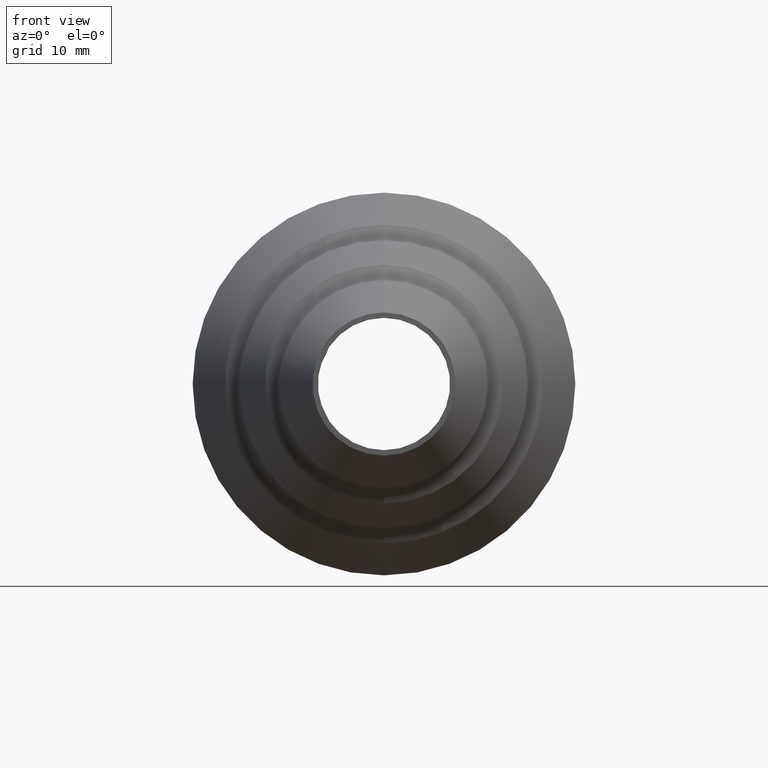
[diagram: clean part render]
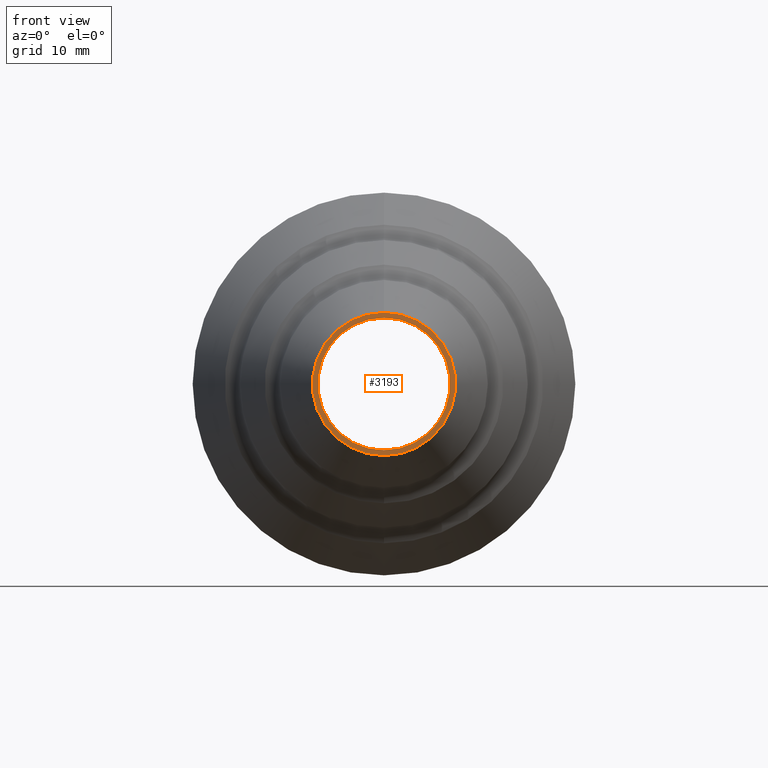
[diagram: same view with one face highlighted and labeled with its STEP entity id]
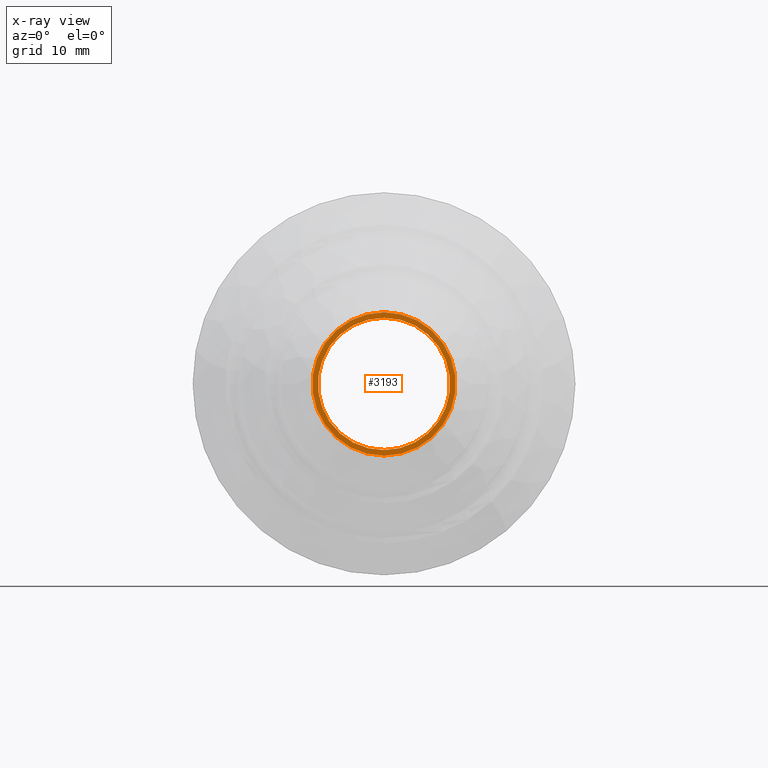
[diagram: x-ray of the same camera — body ghosted, the highlighted face saturated]
A machine part, front view. The second image highlights one B-rep face of the part: STEP entity #3193.
The next image is the same camera in x-ray: the body ghosted, the highlighted face saturated — about 0% of this face is hidden behind the body in this view.
In plain terms, the highlighted planar face has unit normal (0, -1, 0).
Its self-contained STEP definition (entity closure, byte-faithful):
#336 = ORIENTED_EDGE ( 'NONE', *, *, #3563, .F. ) ;
#427 = FACE_OUTER_BOUND ( 'NONE', #6768, .T. ) ;
#629 = VERTEX_POINT ( 'NONE', #2671 ) ;
#715 = ORIENTED_EDGE ( 'NONE', *, *, #10215, .T. ) ;
#851 = VERTEX_POINT ( 'NONE', #11990 ) ;
#932 = AXIS2_PLACEMENT_3D ( 'NONE', #5476, #13220, #8827 ) ;
#1375 = CIRCLE ( 'NONE', #12489, 6.549999999999997158 ) ;
#2671 = CARTESIAN_POINT ( 'NONE',  ( 7.409113134841483563E-16, -22.50000000000000000, 6.049999999999996270 ) ) ;
#2757 = CIRCLE ( 'NONE', #10824, 6.049999999999996270 ) ;
#2948 = AXIS2_PLACEMENT_3D ( 'NONE', #4865, #12622, #4911 ) ;
#3193 = ADVANCED_FACE ( 'NONE', ( #4397, #427 ), #9894, .T. ) ;
#3563 = EDGE_CURVE ( 'NONE', #629, #13613, #11705, .T. ) ;
#3771 = DIRECTION ( 'NONE',  ( 0.000000000000000000, -1.000000000000000000, 0.000000000000000000 ) ) ;
#4397 = FACE_BOUND ( 'NONE', #4459, .T. ) ;
#4459 = EDGE_LOOP ( 'NONE', ( #7550, #336 ) ) ;
#4865 = CARTESIAN_POINT ( 'NONE',  ( 0.000000000000000000, -22.50000000000000000, 0.000000000000000000 ) ) ;
#4892 = DIRECTION ( 'NONE',  ( 0.000000000000000000, 0.000000000000000000, -1.000000000000000000 ) ) ;
#4911 = DIRECTION ( 'NONE',  ( 0.000000000000000000, 0.000000000000000000, -1.000000000000000000 ) ) ;
#5278 = DIRECTION ( 'NONE',  ( 0.000000000000000000, 0.000000000000000000, -1.000000000000000000 ) ) ;
#5476 = CARTESIAN_POINT ( 'NONE',  ( 6.049999999999996270, -22.50000000000000000, 0.000000000000000000 ) ) ;
#6014 = DIRECTION ( 'NONE',  ( 0.000000000000000000, -1.000000000000000000, 0.000000000000000000 ) ) ;
#6458 = DIRECTION ( 'NONE',  ( 0.000000000000000000, -1.000000000000000000, 0.000000000000000000 ) ) ;
#6768 = EDGE_LOOP ( 'NONE', ( #9908, #715 ) ) ;
#7071 = CARTESIAN_POINT ( 'NONE',  ( 0.000000000000000000, -22.50000000000000000, -6.549999999999997158 ) ) ;
#7089 = DIRECTION ( 'NONE',  ( 0.000000000000000000, 0.000000000000000000, -1.000000000000000000 ) ) ;
#7179 = VERTEX_POINT ( 'NONE', #7071 ) ;
#7550 = ORIENTED_EDGE ( 'NONE', *, *, #10027, .F. ) ;
#8827 = DIRECTION ( 'NONE',  ( 0.000000000000000000, 0.000000000000000000, 1.000000000000000000 ) ) ;
#9517 = CIRCLE ( 'NONE', #10739, 6.549999999999997158 ) ;
#9814 = CARTESIAN_POINT ( 'NONE',  ( 0.000000000000000000, -22.50000000000000000, -6.049999999999996270 ) ) ;
#9894 = PLANE ( 'NONE',  #932 ) ;
#9908 = ORIENTED_EDGE ( 'NONE', *, *, #11271, .T. ) ;
#10027 = EDGE_CURVE ( 'NONE', #13613, #629, #2757, .T. ) ;
#10215 = EDGE_CURVE ( 'NONE', #851, #7179, #1375, .T. ) ;
#10428 = CARTESIAN_POINT ( 'NONE',  ( 0.000000000000000000, -22.50000000000000000, 0.000000000000000000 ) ) ;
#10739 = AXIS2_PLACEMENT_3D ( 'NONE', #12645, #6014, #7089 ) ;
#10818 = CARTESIAN_POINT ( 'NONE',  ( 0.000000000000000000, -22.50000000000000000, 0.000000000000000000 ) ) ;
#10824 = AXIS2_PLACEMENT_3D ( 'NONE', #10428, #3771, #4892 ) ;
#11271 = EDGE_CURVE ( 'NONE', #7179, #851, #9517, .T. ) ;
#11705 = CIRCLE ( 'NONE', #2948, 6.049999999999996270 ) ;
#11990 = CARTESIAN_POINT ( 'NONE',  ( -9.819536463675791713E-16, -22.50000000000000000, 6.549999999999997158 ) ) ;
#12489 = AXIS2_PLACEMENT_3D ( 'NONE', #10818, #6458, #5278 ) ;
#12622 = DIRECTION ( 'NONE',  ( 0.000000000000000000, -1.000000000000000000, 0.000000000000000000 ) ) ;
#12645 = CARTESIAN_POINT ( 'NONE',  ( 0.000000000000000000, -22.50000000000000000, 0.000000000000000000 ) ) ;
#13220 = DIRECTION ( 'NONE',  ( 0.000000000000000000, -1.000000000000000000, 0.000000000000000000 ) ) ;
#13613 = VERTEX_POINT ( 'NONE', #9814 ) ;